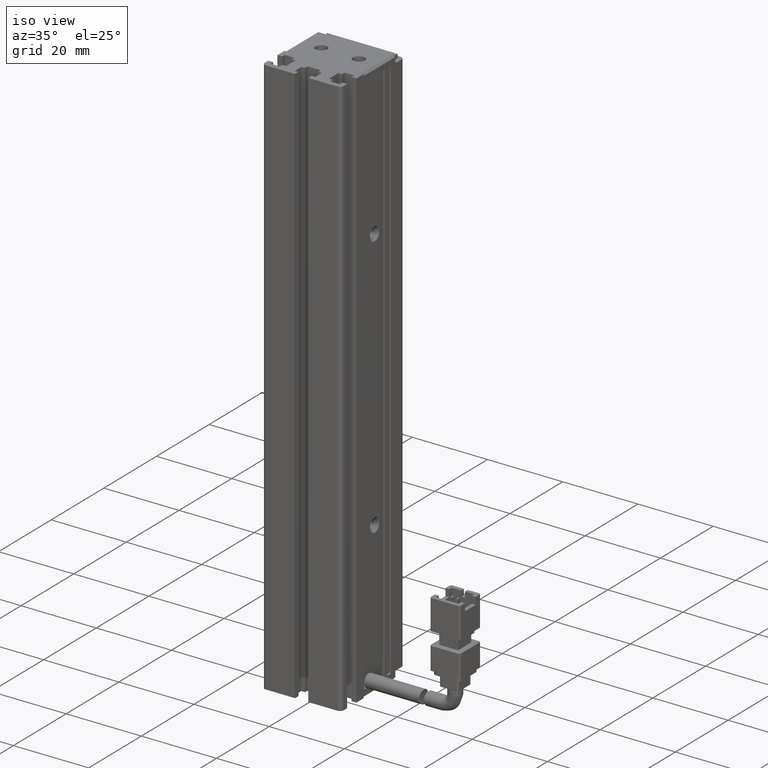
[diagram: clean part render]
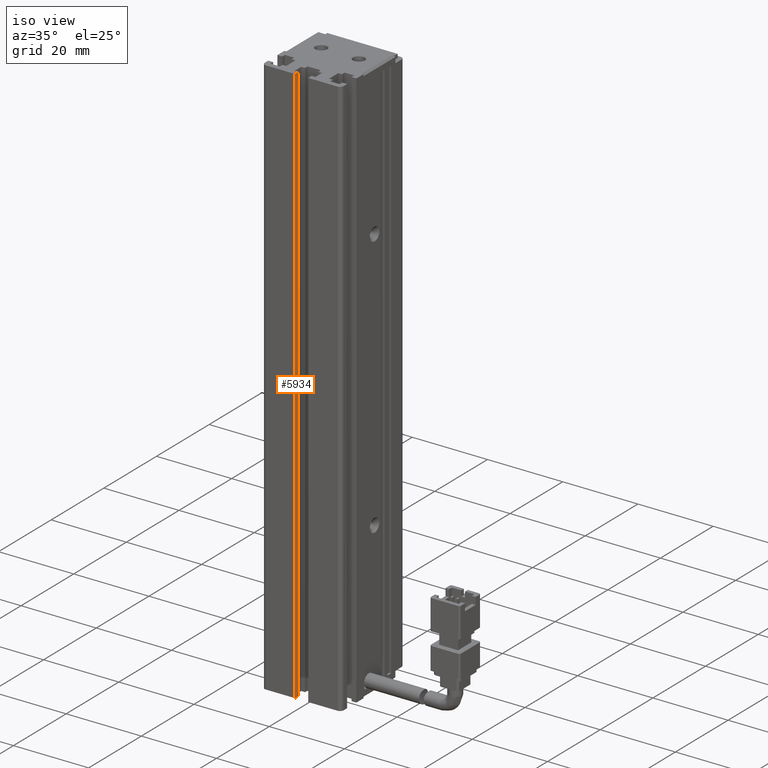
[diagram: same view with one face highlighted and labeled with its STEP entity id]
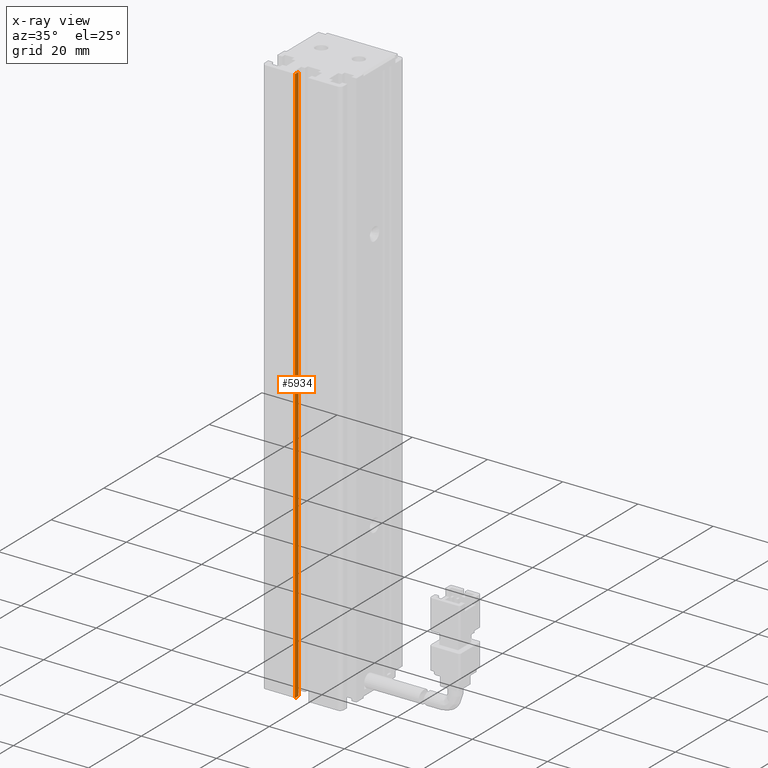
[diagram: x-ray of the same camera — body ghosted, the highlighted face saturated]
A machine part, iso view. The second image highlights one B-rep face of the part: STEP entity #5934.
The next image is the same camera in x-ray: the body ghosted, the highlighted face saturated — about 0% of this face is hidden behind the body in this view.
In plain terms, the highlighted planar face has unit normal (1, 0, -0).
Its self-contained STEP definition (entity closure, byte-faithful):
#2528 = LINE ( 'NONE', #23827, #29479 ) ;
#3095 = CARTESIAN_POINT ( 'NONE',  ( 39.17537974683542500, 12.29073232304837200, -40.00000000000000700 ) ) ;
#4946 = PLANE ( 'NONE',  #23727 ) ;
#5934 = ADVANCED_FACE ( 'NONE', ( #12292 ), #4946, .T. ) ;
#9057 = DIRECTION ( 'NONE',  ( -0.0000000000000000000, 0.0000000000000000000, -1.000000000000000000 ) ) ;
#9094 = CARTESIAN_POINT ( 'NONE',  ( 39.17537974683542500, 12.29073232304837200, -40.00000000000000700 ) ) ;
#10433 = EDGE_LOOP ( 'NONE', ( #34061, #22077, #17589, #30652 ) ) ;
#10488 = LINE ( 'NONE', #12705, #22660 ) ;
#10511 = CARTESIAN_POINT ( 'NONE',  ( 39.17537974683542500, 10.99073232304837000, -190.0000000000000000 ) ) ;
#11833 = VERTEX_POINT ( 'NONE', #14330 ) ;
#12199 = DIRECTION ( 'NONE',  ( 1.000000000000000000, 0.0000000000000000000, -0.0000000000000000000 ) ) ;
#12292 = FACE_OUTER_BOUND ( 'NONE', #10433, .T. ) ;
#12705 = CARTESIAN_POINT ( 'NONE',  ( 39.17537974683542500, 10.99073232304837000, -40.00000000000000700 ) ) ;
#14330 = CARTESIAN_POINT ( 'NONE',  ( 39.17537974683542500, 10.99073232304837000, -40.00000000000000700 ) ) ;
#15672 = DIRECTION ( 'NONE',  ( -0.0000000000000000000, 0.0000000000000000000, 1.000000000000000000 ) ) ;
#15965 = DIRECTION ( 'NONE',  ( -0.0000000000000000000, -1.000000000000000000, -0.0000000000000000000 ) ) ;
#17070 = EDGE_CURVE ( 'NONE', #34026, #19894, #2528, .T. ) ;
#17589 = ORIENTED_EDGE ( 'NONE', *, *, #17070, .T. ) ;
#18669 = LINE ( 'NONE', #3095, #26255 ) ;
#19894 = VERTEX_POINT ( 'NONE', #41343 ) ;
#22077 = ORIENTED_EDGE ( 'NONE', *, *, #34315, .F. ) ;
#22660 = VECTOR ( 'NONE', #15672, 1000.000000000000000 ) ;
#23727 = AXIS2_PLACEMENT_3D ( 'NONE', #41240, #12199, #9057 ) ;
#23827 = CARTESIAN_POINT ( 'NONE',  ( 39.17537974683542500, 7.083797468354437600, -190.0000000000000000 ) ) ;
#25111 = LINE ( 'NONE', #38915, #32265 ) ;
#25693 = EDGE_CURVE ( 'NONE', #26972, #11833, #25111, .T. ) ;
#26255 = VECTOR ( 'NONE', #39408, 1000.000000000000000 ) ;
#26972 = VERTEX_POINT ( 'NONE', #9094 ) ;
#27083 = DIRECTION ( 'NONE',  ( 0.0000000000000000000, 1.000000000000000000, 0.0000000000000000000 ) ) ;
#29479 = VECTOR ( 'NONE', #27083, 1000.000000000000000 ) ;
#30652 = ORIENTED_EDGE ( 'NONE', *, *, #33961, .T. ) ;
#32265 = VECTOR ( 'NONE', #15965, 1000.000000000000000 ) ;
#33961 = EDGE_CURVE ( 'NONE', #19894, #26972, #18669, .T. ) ;
#34026 = VERTEX_POINT ( 'NONE', #10511 ) ;
#34061 = ORIENTED_EDGE ( 'NONE', *, *, #25693, .T. ) ;
#34315 = EDGE_CURVE ( 'NONE', #34026, #11833, #10488, .T. ) ;
#38915 = CARTESIAN_POINT ( 'NONE',  ( 39.17537974683542500, 7.083797468354437600, -40.00000000000000700 ) ) ;
#39408 = DIRECTION ( 'NONE',  ( -0.0000000000000000000, 0.0000000000000000000, 1.000000000000000000 ) ) ;
#41240 = CARTESIAN_POINT ( 'NONE',  ( 39.17537974683542500, 7.083797468354437600, -40.00000000000000700 ) ) ;
#41343 = CARTESIAN_POINT ( 'NONE',  ( 39.17537974683542500, 12.29073232304837200, -190.0000000000000000 ) ) ;